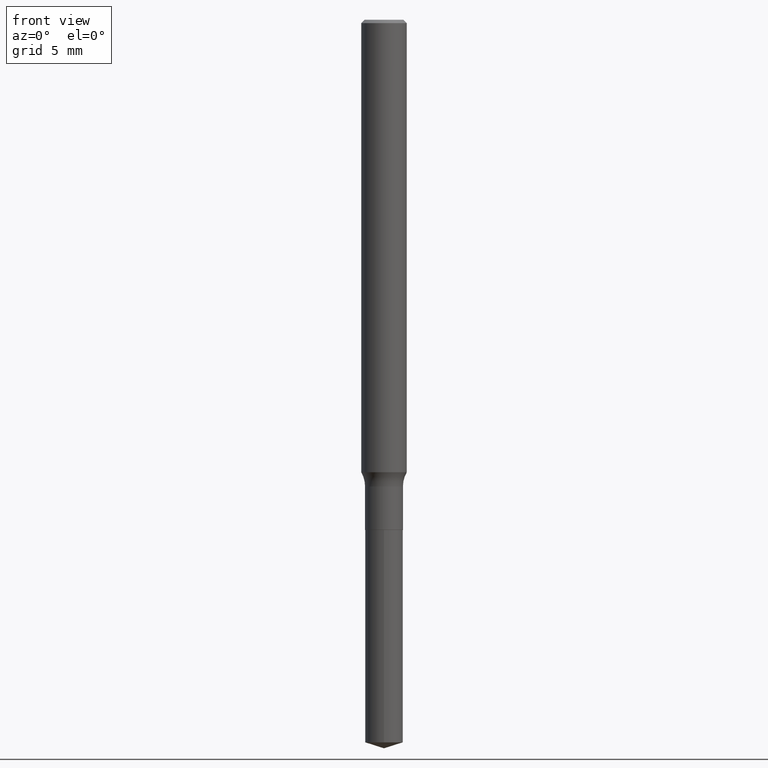
[diagram: clean part render]
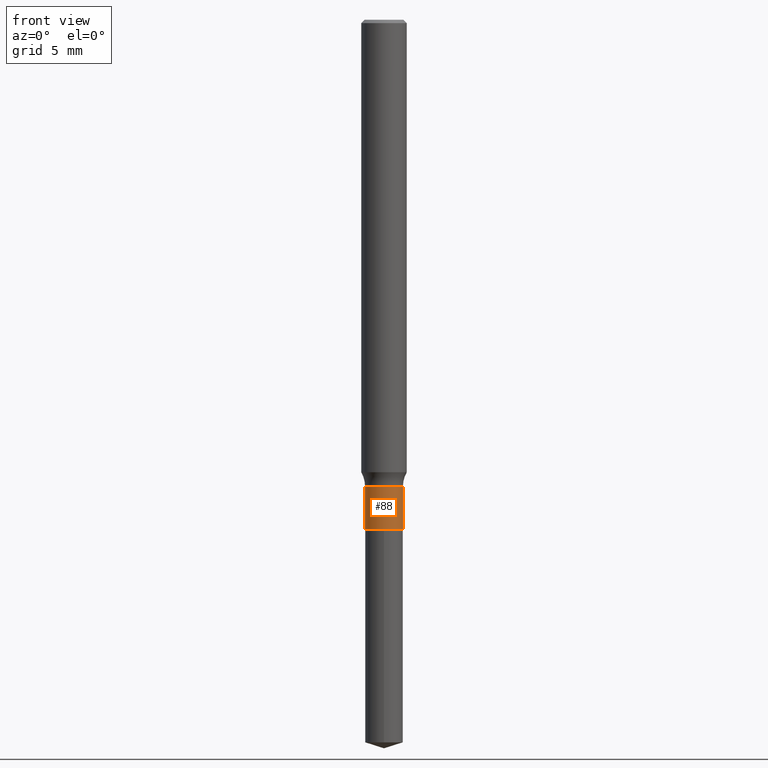
[diagram: same view with one face highlighted and labeled with its STEP entity id]
A machine part, front view. The second image highlights one B-rep face of the part: STEP entity #88.
In plain terms, the highlighted cylindrical surface (edge-blend (fillet) strip) has radius 1.3208 mm, axis along (-0, 0, 1).
Its self-contained STEP definition (entity closure, byte-faithful):
#3 = VERTEX_POINT ( 'NONE', #238 ) ;
#68 = DIRECTION ( 'NONE',  ( -2.445468806185136877E-29, 3.491481338843145188E-15, 1.000000000000000000 ) ) ;
#83 = DIRECTION ( 'NONE',  ( -2.445468806185136597E-29, 3.491481338843145583E-15, 1.000000000000000000 ) ) ;
#87 = EDGE_LOOP ( 'NONE', ( #183, #430, #425, #472 ) ) ;
#88 = ADVANCED_FACE ( 'NONE', ( #387 ), #322, .T. ) ;
#129 = EDGE_CURVE ( 'NONE', #3, #300, #412, .T. ) ;
#153 = LINE ( 'NONE', #383, #268 ) ;
#157 = LINE ( 'NONE', #439, #218 ) ;
#175 = VERTEX_POINT ( 'NONE', #260 ) ;
#181 = DIRECTION ( 'NONE',  ( -2.445468806185136597E-29, 3.491481338843145583E-15, 1.000000000000000000 ) ) ;
#183 = ORIENTED_EDGE ( 'NONE', *, *, #341, .F. ) ;
#199 = EDGE_CURVE ( 'NONE', #175, #324, #236, .T. ) ;
#218 = VECTOR ( 'NONE', #68, 39.37007874015748143 ) ;
#224 = CARTESIAN_POINT ( 'NONE',  ( 3.133379181365015096E-29, -4.473635039459721750E-15, -1.281299999999999883 ) ) ;
#231 = CARTESIAN_POINT ( 'NONE',  ( 0.05200000000000000455, -5.252584526155628197E-15, -1.400400000000000089 ) ) ;
#236 = CIRCLE ( 'NONE', #281, 0.05199999999999998374 ) ;
#238 = CARTESIAN_POINT ( 'NONE',  ( -0.05200000000000000455, -4.312070530592579472E-15, -1.400400000000000089 ) ) ;
#260 = CARTESIAN_POINT ( 'NONE',  ( -0.05199999999999998374, -4.312070530592579472E-15, -1.281299999999999883 ) ) ;
#262 = CARTESIAN_POINT ( 'NONE',  ( 3.424634516181665701E-29, -4.889470466915941255E-15, -1.400400000000000089 ) ) ;
#268 = VECTOR ( 'NONE', #453, 39.37007874015748143 ) ;
#273 = CARTESIAN_POINT ( 'NONE',  ( 0.000000000000000000, 0.000000000000000000, 0.000000000000000000 ) ) ;
#280 = AXIS2_PLACEMENT_3D ( 'NONE', #273, #83, #363 ) ;
#281 = AXIS2_PLACEMENT_3D ( 'NONE', #224, #181, #375 ) ;
#290 = CARTESIAN_POINT ( 'NONE',  ( 0.05199999999999998374, -4.836749098699407114E-15, -1.281299999999999883 ) ) ;
#300 = VERTEX_POINT ( 'NONE', #231 ) ;
#322 = CYLINDRICAL_SURFACE ( 'NONE', #280, 0.05199999999999999067 ) ;
#324 = VERTEX_POINT ( 'NONE', #290 ) ;
#341 = EDGE_CURVE ( 'NONE', #3, #175, #157, .T. ) ;
#363 = DIRECTION ( 'NONE',  ( 1.000000000000000000, -6.982962677686267499E-15, 4.876176775795935793E-29 ) ) ;
#372 = DIRECTION ( 'NONE',  ( 1.000000000000000000, -6.982962677686276177E-15, 0.000000000000000000 ) ) ;
#375 = DIRECTION ( 'NONE',  ( 1.000000000000000000, -6.982962677686260400E-15, 0.000000000000000000 ) ) ;
#383 = CARTESIAN_POINT ( 'NONE',  ( 0.05199999999999999067, -3.631140592396858571E-16, 2.535611923413886108E-30 ) ) ;
#387 = FACE_OUTER_BOUND ( 'NONE', #87, .T. ) ;
#402 = AXIS2_PLACEMENT_3D ( 'NONE', #262, #410, #372 ) ;
#410 = DIRECTION ( 'NONE',  ( -2.445468806185136597E-29, 3.491481338843145583E-15, 1.000000000000000000 ) ) ;
#412 = CIRCLE ( 'NONE', #402, 0.05200000000000000455 ) ;
#425 = ORIENTED_EDGE ( 'NONE', *, *, #479, .T. ) ;
#430 = ORIENTED_EDGE ( 'NONE', *, *, #129, .T. ) ;
#439 = CARTESIAN_POINT ( 'NONE',  ( -0.05199999999999999067, 3.694822225952520304E-16, -2.557846246932550771E-30 ) ) ;
#453 = DIRECTION ( 'NONE',  ( -2.445468806185136877E-29, 3.491481338843145188E-15, 1.000000000000000000 ) ) ;
#472 = ORIENTED_EDGE ( 'NONE', *, *, #199, .F. ) ;
#479 = EDGE_CURVE ( 'NONE', #300, #324, #153, .T. ) ;